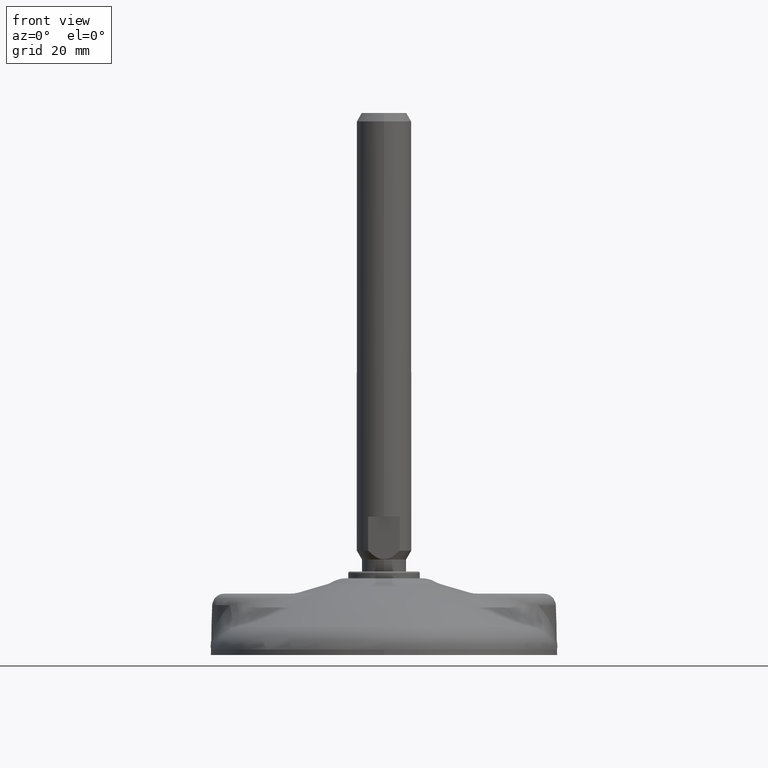
[diagram: clean part render]
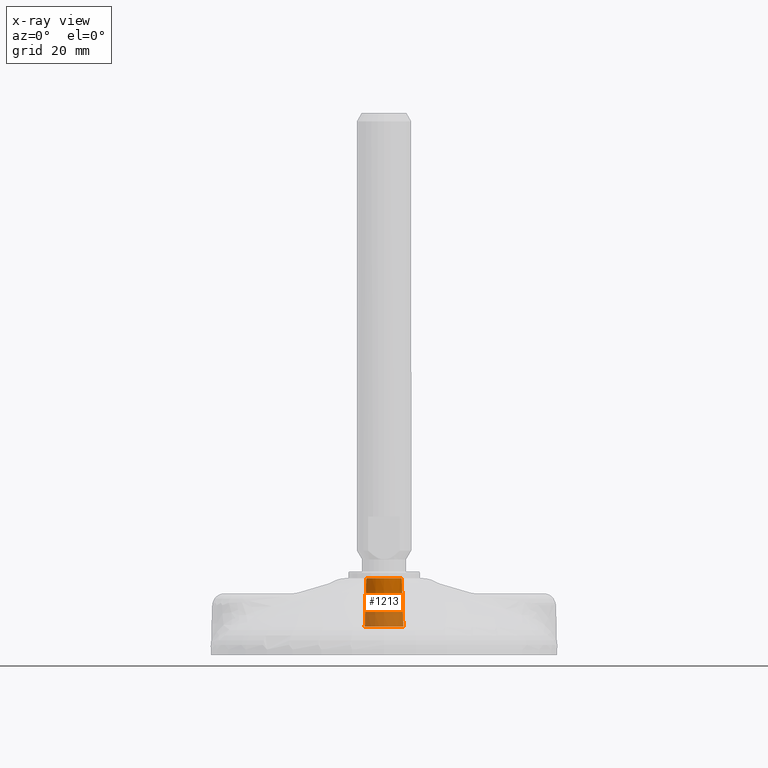
[diagram: x-ray — body ghosted, one internal face saturated and labeled with its STEP entity id]
A machine part, front view, then the same camera in x-ray: the body is ghosted and one INTERNAL B-rep face — a face not visible from any outside direction — is saturated and labeled: STEP entity #1213.
In plain terms, the highlighted conical surface has half-angle 1.902 deg.
Its self-contained STEP definition (entity closure, byte-faithful):
#49=CONICAL_SURFACE('',#1353,5.7227324409876,0.0331941455364198);
#110=LINE('',#5780,#149);
#149=VECTOR('',#1587,5.7227324409876);
#234=FACE_OUTER_BOUND('',#320,.T.);
#320=EDGE_LOOP('',(#900,#901,#902,#903));
#378=CIRCLE('',#1292,5.2499376306623);
#422=CIRCLE('',#1354,5.7227324409876);
#469=VERTEX_POINT('',#1803);
#517=VERTEX_POINT('',#5779);
#573=EDGE_CURVE('',#469,#469,#378,.F.);
#654=EDGE_CURVE('',#469,#517,#110,.T.);
#655=EDGE_CURVE('',#517,#517,#422,.T.);
#900=ORIENTED_EDGE('',*,*,#573,.T.);
#901=ORIENTED_EDGE('',*,*,#654,.T.);
#902=ORIENTED_EDGE('',*,*,#655,.F.);
#903=ORIENTED_EDGE('',*,*,#654,.F.);
#1213=ADVANCED_FACE('',(#234),#49,.F.);
#1292=AXIS2_PLACEMENT_3D('',#1804,#1458,#1459);
#1353=AXIS2_PLACEMENT_3D('',#5778,#1585,#1586);
#1354=AXIS2_PLACEMENT_3D('',#5781,#1588,#1589);
#1458=DIRECTION('center_axis',(0.,-1.171453E-15,-1.));
#1459=DIRECTION('ref_axis',(0.,1.,-1.171453E-15));
#1585=DIRECTION('center_axis',(0.,-6.123234E-17,-1.));
#1586=DIRECTION('ref_axis',(0.,1.,-6.123234E-17));
#1587=DIRECTION('',(-4.06436392475778E-18,-0.033188050036856,-0.999449124935707));
#1588=DIRECTION('center_axis',(0.,6.123234E-17,1.));
#1589=DIRECTION('ref_axis',(0.,-1.,6.123234E-17));
#1803=CARTESIAN_POINT('',(-6.42931931511382E-16,-5.24993763066226,22.5000074721177));
#1804=CARTESIAN_POINT('Origin',(0.,5.846006E-14,22.5000074721177));
#5778=CARTESIAN_POINT('Origin',(0.,3.103697E-14,8.26192000000009));
#5779=CARTESIAN_POINT('',(0.,-5.72273244098757,8.26192000000009));
#5780=CARTESIAN_POINT('',(-7.00832596623218E-16,-5.72273244098757,8.26192000000009));
#5781=CARTESIAN_POINT('Origin',(0.,3.154287E-14,8.26192000000009));